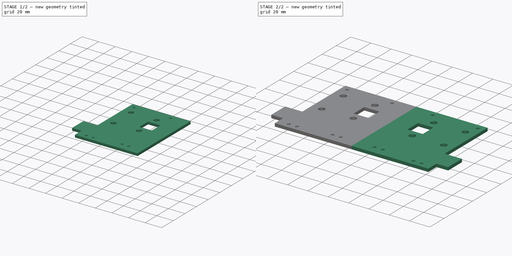
[diagram: build sequence overview — one tinted view per stage of 2, left to right]
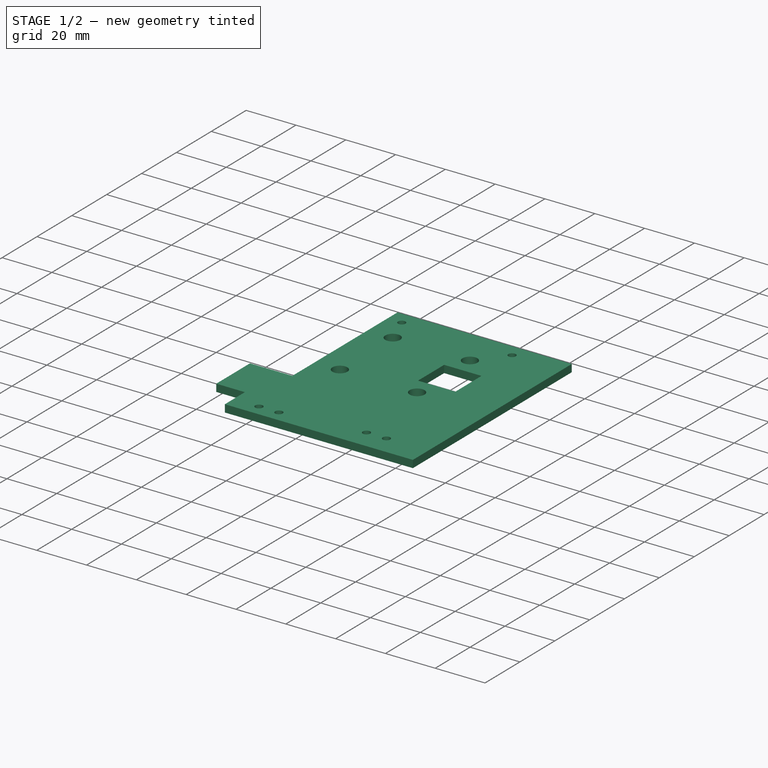
[diagram: stage 1 of 2 — iso view after this stage's code; geometry added in this stage tinted green]
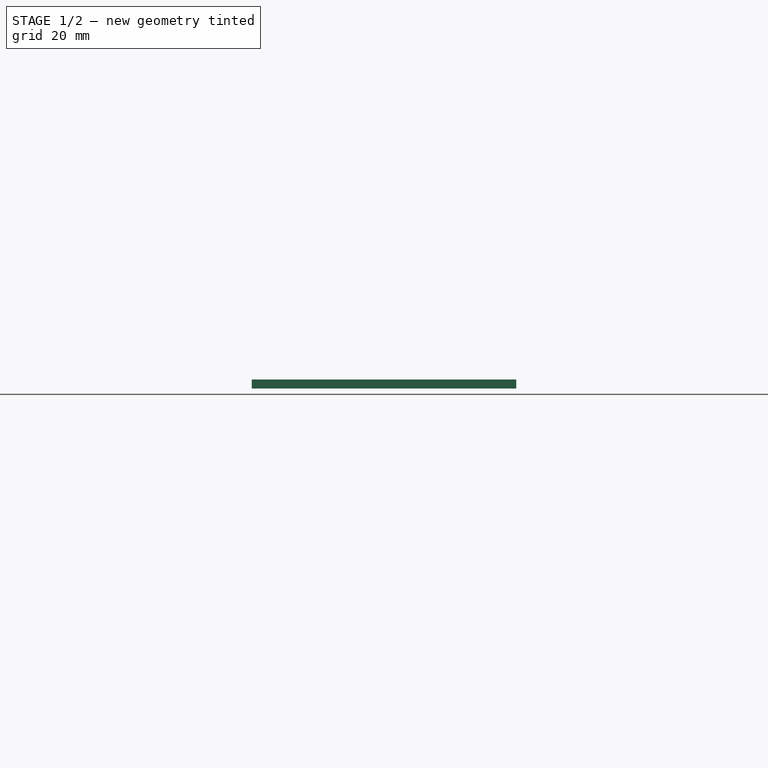
[diagram: stage 1 of 2 — front view after this stage's code; geometry added in this stage tinted green]
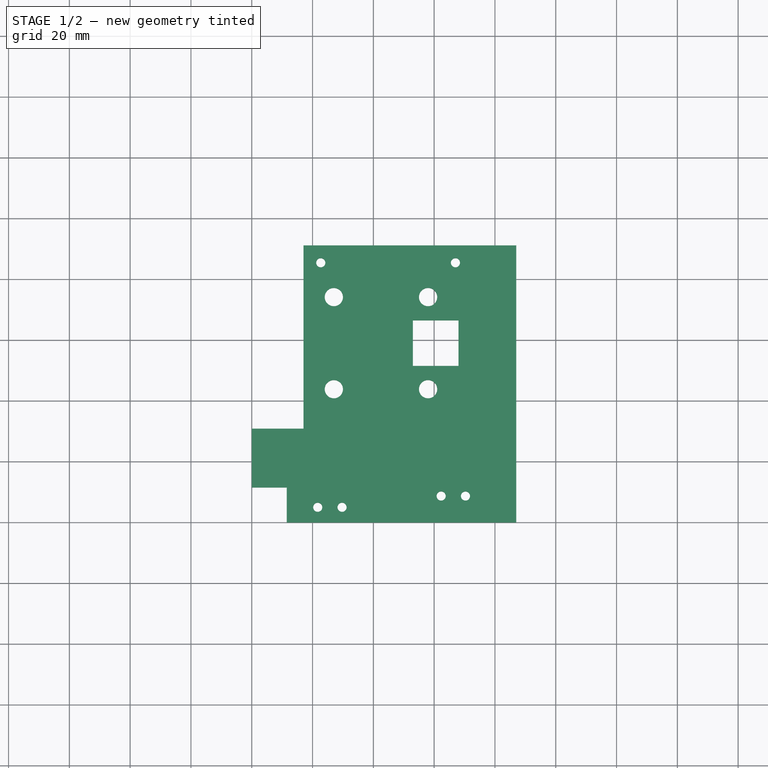
[diagram: stage 1 of 2 — top view after this stage's code; geometry added in this stage tinted green]
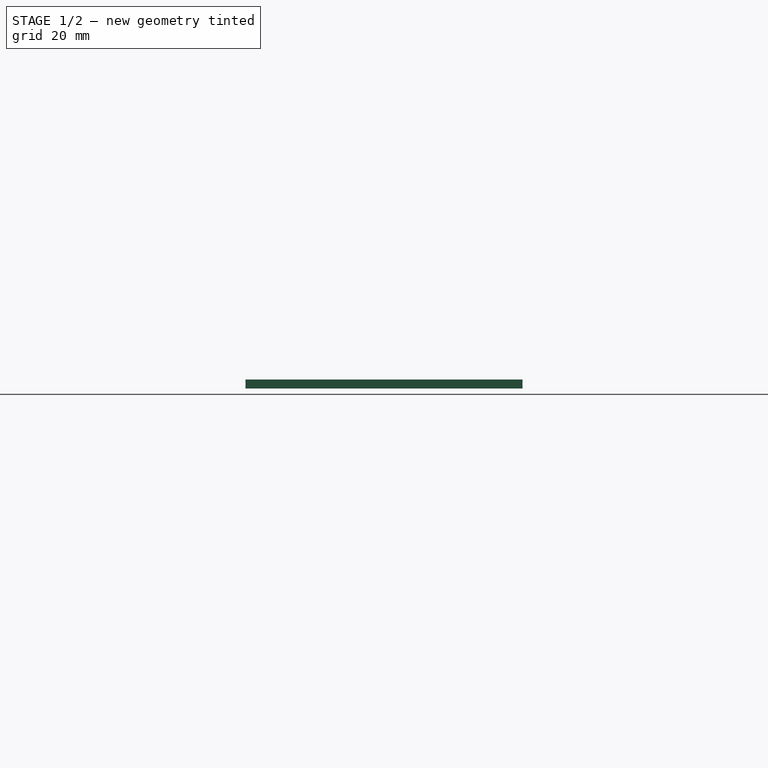
[diagram: stage 1 of 2 — right view after this stage's code; geometry added in this stage tinted green]
FCSTD DOCUMENT  (FreeCAD 0.16R6707 (Git))
Label: 1er_étage
License: All rights reserved
LicenseURL: http://en.wikipedia.org/wiki/All_rights_reserved
objects: Sketcher::SketchObject×1, PartDesign::Pad×1, PartDesign::Mirrored×1
note: 4 computed .brp shape members not serialized (recipe doc carries the construction recipe); baked Part::Feature solids carry a one-line shape summary decoded from their .brp

FEATURE [Sketcher::SketchObject] Sketch
  sketch-geometry (32):
    g0: LineSegment StartX=87 StartY=0 StartZ=0 EndX=87 EndY=91.15 EndZ=0
    g1: GeomPoint [constr] X=27 Y=74.15 Z=0
    g2: GeomPoint [constr] X=58 Y=74.15 Z=0
    g3: GeomPoint [constr] X=27 Y=43.85 Z=0
    g4: GeomPoint [constr] X=58 Y=43.85 Z=0
    g5: GeomPoint [constr] X=5 Y=5 Z=0
    g6: Circle CenterX=27 CenterY=74.15 CenterZ=0 NormalX=0 NormalY=0 NormalZ=1 Radius=3
    g7: Circle CenterX=58 CenterY=74.15 CenterZ=0 NormalX=0 NormalY=0 NormalZ=1 Radius=3
    g8: Circle CenterX=58 CenterY=43.85 CenterZ=0 NormalX=0 NormalY=0 NormalZ=1 Radius=3
    g9: Circle CenterX=27 CenterY=43.85 CenterZ=0 NormalX=0 NormalY=0 NormalZ=1 Radius=3
    g10: GeomPoint [constr] X=68 Y=59 Z=0
    g11: LineSegment StartX=68 StartY=59 StartZ=0 EndX=68 EndY=66.5 EndZ=0
    g12: LineSegment StartX=68 StartY=66.5 StartZ=0 EndX=53 EndY=66.5 EndZ=0
    g13: LineSegment StartX=53 StartY=66.5 StartZ=0 EndX=53 EndY=51.5 EndZ=0
    g14: LineSegment StartX=53 StartY=51.5 StartZ=0 EndX=68 EndY=51.5 EndZ=0
    g15: LineSegment StartX=68 StartY=51.5 StartZ=0 EndX=68 EndY=59 EndZ=0
    g16: LineSegment StartX=0 StartY=30.85 StartZ=0 EndX=17 EndY=30.85 EndZ=0
    g17: LineSegment StartX=17 StartY=30.85 StartZ=0 EndX=17 EndY=91.15 EndZ=0
    g18: LineSegment StartX=17 StartY=91.15 StartZ=0 EndX=87 EndY=91.15 EndZ=0
    g19: GeomPoint [constr] X=21.7 Y=5 Z=0
    g20: GeomPoint [constr] X=29.7 Y=5 Z=0
    g21: Circle CenterX=21.7 CenterY=5 CenterZ=0 NormalX=0 NormalY=0 NormalZ=1 Radius=1.5
    g22: Circle CenterX=29.7 CenterY=5 CenterZ=0 NormalX=0 NormalY=0 NormalZ=1 Radius=1.5
    g23: LineSegment StartX=87 StartY=0 StartZ=0 EndX=11.5 EndY=0 EndZ=0
    g24: LineSegment StartX=0 StartY=30.85 StartZ=0 EndX=0 EndY=11.5 EndZ=0
    g25: LineSegment StartX=0 StartY=11.5 StartZ=0 EndX=11.5 EndY=11.5 EndZ=0
    g26: LineSegment StartX=11.5 StartY=11.5 StartZ=0 EndX=11.5 EndY=0 EndZ=0
    g27: GeomPoint [constr] X=81.3 Y=8.7 Z=0
    g28: Circle CenterX=70.3 CenterY=8.7 CenterZ=0 NormalX=0 NormalY=0 NormalZ=1 Radius=1.5
    g29: Circle CenterX=62.3 CenterY=8.7 CenterZ=0 NormalX=0 NormalY=0 NormalZ=1 Radius=1.5
    g30: Circle CenterX=22.7 CenterY=85.45 CenterZ=0 NormalX=0 NormalY=0 NormalZ=1 Radius=1.5
    g31: Circle CenterX=67 CenterY=85.45 CenterZ=0 NormalX=0 NormalY=0 NormalZ=1 Radius=1.5
  constraints (80):
    c: Vertical(g0)
    c: DistanceX(g1,g2) = 31
    c: DistanceX(g3,g4) = 31
    c: DistanceY(g3,g4) = 0
    c: DistanceY(g2,g1) = 0
    c: DistanceY(g4,g2) = 30.3
    c: DistanceY(g4) = 43.85
    c: Coincident(g6,g1)
    c: Coincident(g7,g2)
    c: Coincident(g8,g4)
    c: Coincident(g9,g3)
    c: Radius(g9) = 3
    c: Equal(g9,g6)
    c: Equal(g9,g7)
    c: Equal(g9,g8)
    c: DistanceX(g4) = 58
    c: DistanceX(g2,g4) = 0
    c: DistanceX(g4,g10) = 10
    c: DistanceY(g4,g10) = 15.15
    c: Coincident(g11,g10)
    c: Vertical(g11)
    c: Coincident(g11,g12)
    c: Horizontal(g12)
    c: Coincident(g12,g13)
    c: Vertical(g13)
    c: Coincident(g13,g14)
    c: Horizontal(g14)
    c: Coincident(g14,g15)
    c: Coincident(g15,g11)
    c: Distance(g11) = 7.5
    c: Distance(g12) = 15
    c: Distance(g13) = 15
    c: Distance(g14) = 15
    c: DistanceY(g5) = 5
    c: DistanceX(g5) = 5
    c: Distance(g0) = 91.15
    c: Horizontal(g16)
    c: Coincident(g17,g16)
    c: Vertical(g17)
    c: Distance(g16) = 17
    c: Coincident(g18,g17)
    c: Coincident(g18,g0)
    c: DistanceX(g5,g19) = 16.7
    c: DistanceX(g19,g20) = 8
    c: DistanceY(g5,g19) = 0
    c: DistanceY(g20,g19) = 0
    c: Coincident(g21,g19)
    c: Coincident(g22,g20)
    c: Radius(g22) = 1.5
    c: Equal(g22,g21)
    c: Distance(g18) = 70
    c: Coincident(g23,g0)
    c: Horizontal(g23)
    c: Coincident(g24,g16)
    c: Vertical(g24)
    c: Coincident(g25,g26)
    c: Horizontal(g25)
    c: Vertical(g26)
    c: Coincident(g25,g24)
    c: Coincident(g26,g23)
    c: Distance(g25) = 11.5
    c: Distance(g26) = 11.5
    c: DistanceY(g27) = 8.7
    c: DistanceX(g23) = 11.5
    c: DistanceY(g23) = 0
    c: DistanceX(g27,g0) = 5.7
    c: DistanceY(g28,g29) = 0
    c: DistanceY(g27,g28) = 0
    c: DistanceX(g28,g27) = 11
    c: DistanceX(g29,g28) = 8
    c: Radius(g29) = 1.5
    c: Equal(g29,g28)
    c: Distance(g24) = 19.35
    c: Horizontal(g18)
    c: Radius(g30) = 1.5
    c: DistanceX(g17,g30) = 5.7
    c: DistanceY(g30,g17) = 5.7
    c: Radius(g31) = 1.5
    c: DistanceY(g31,g0) = 5.7
    c: DistanceX(g31,g0) = 20
FEATURE [PartDesign::Pad] Pad
  Length = 3
  Length2 = 100
  Sketch = -> Sketch
  Type = 0
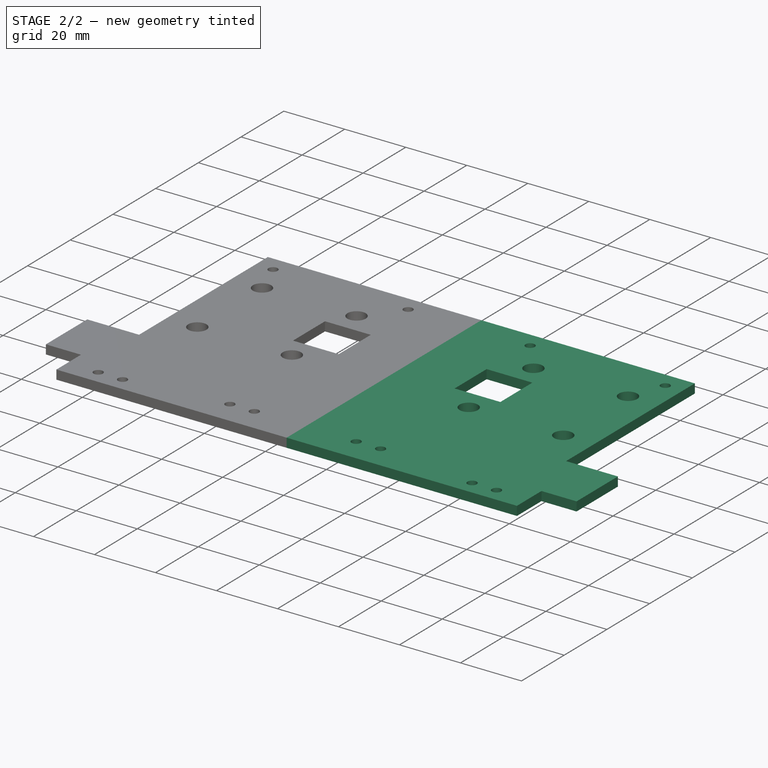
[diagram: stage 2 of 2 — iso view after this stage's code; geometry added in this stage tinted green]
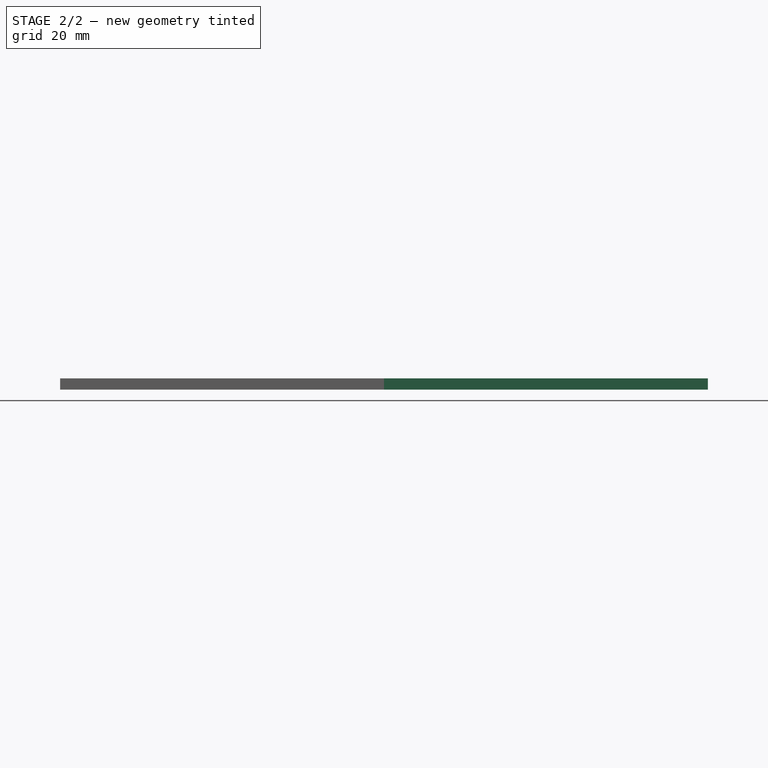
[diagram: stage 2 of 2 — front view after this stage's code; geometry added in this stage tinted green]
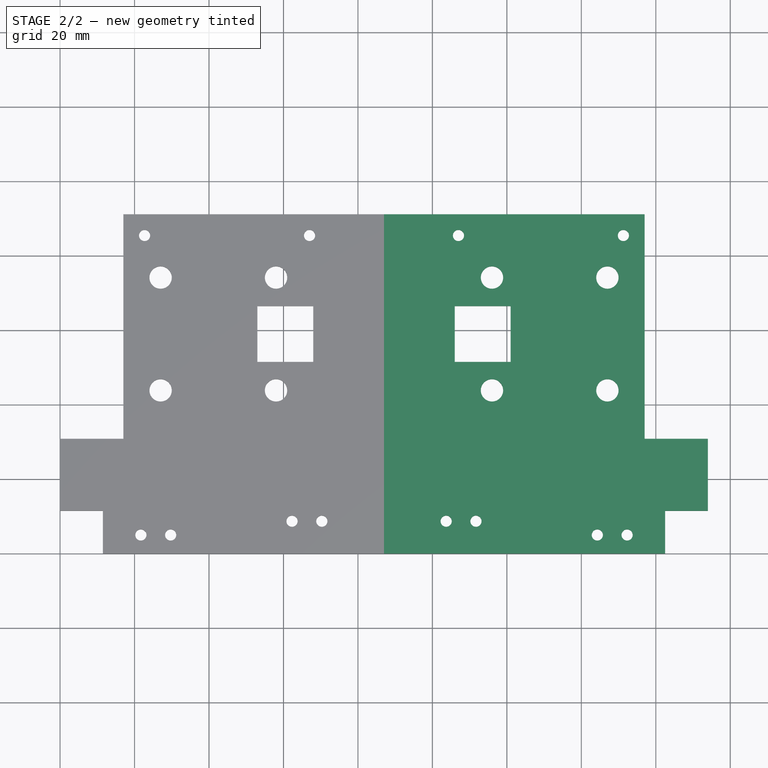
[diagram: stage 2 of 2 — top view after this stage's code; geometry added in this stage tinted green]
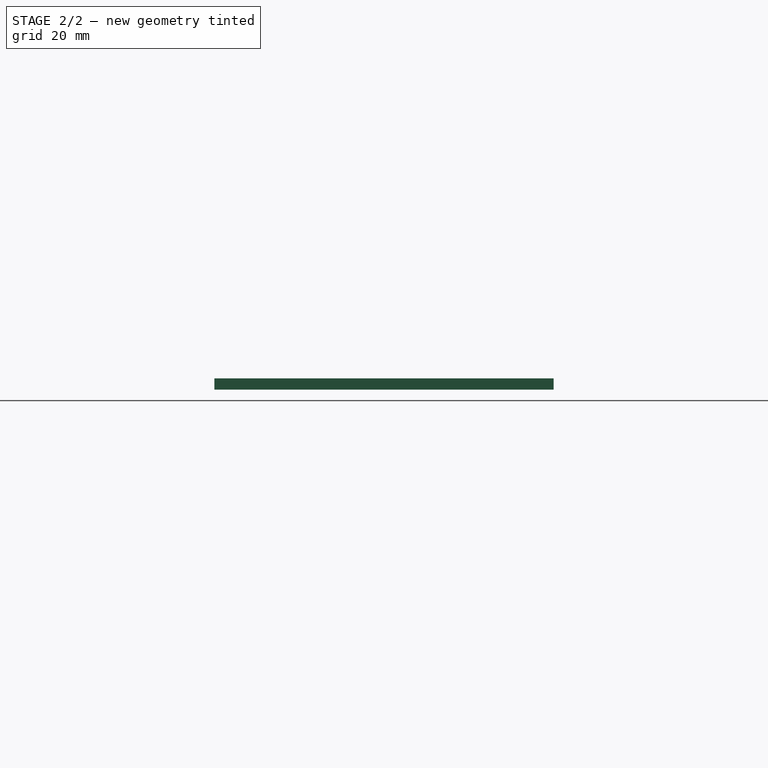
[diagram: stage 2 of 2 — right view after this stage's code; geometry added in this stage tinted green]
FEATURE [PartDesign::Mirrored] Mirrored
  MirrorPlane = -> Pad [Face1]
  Originals = -> [Pad]
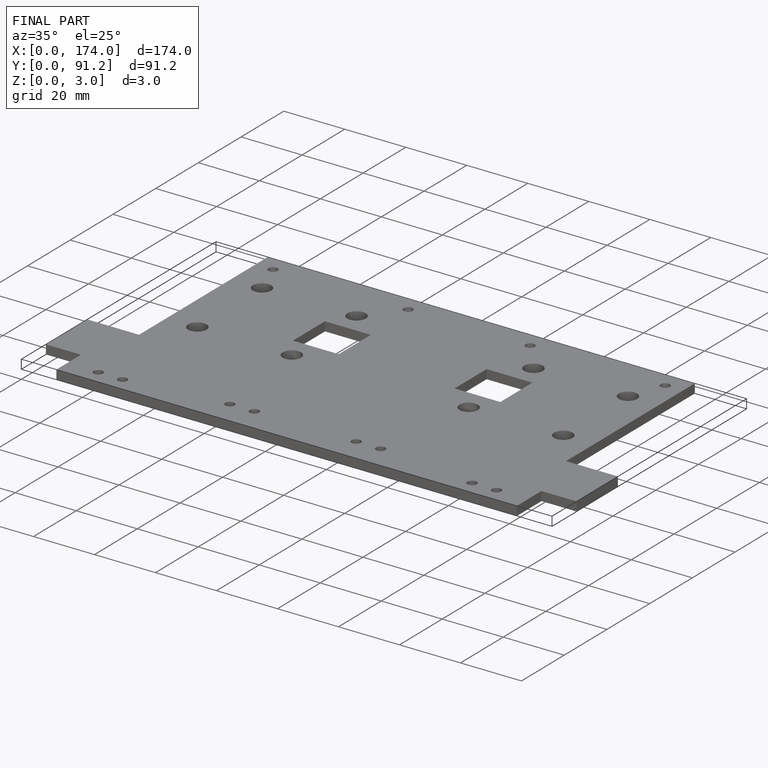
[diagram: finished part — iso view with bounding-box wireframe]
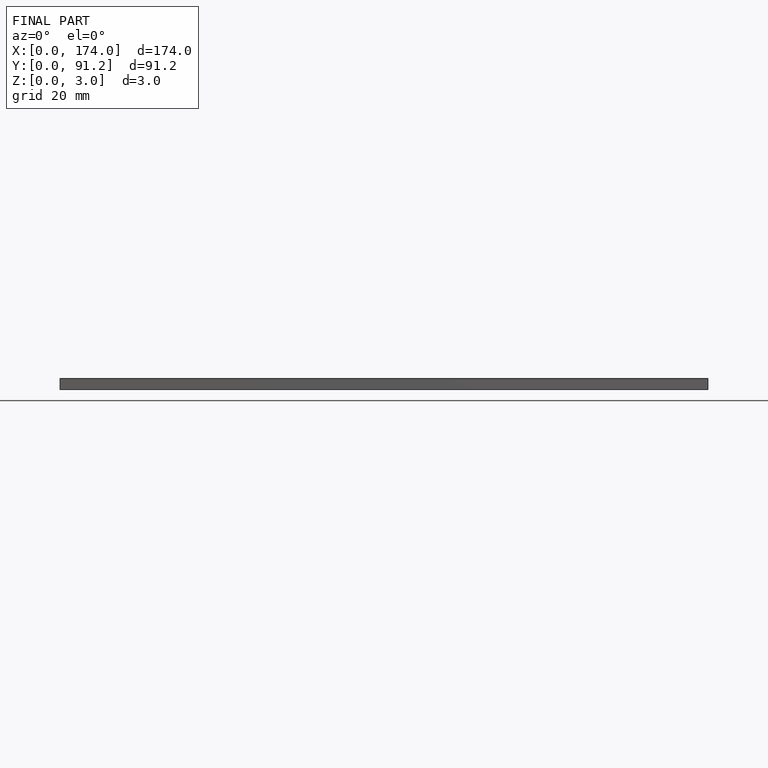
[diagram: finished part — front view with bounding-box wireframe]
